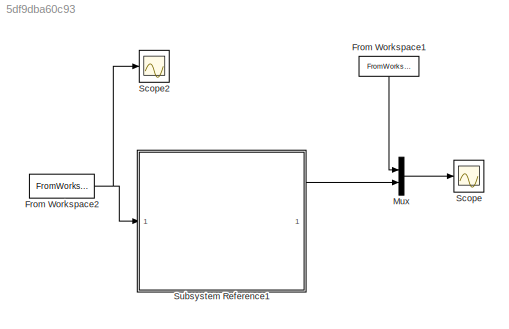
MODEL slx_5df9dba60c93
KIND model
CONFIG AbsTol = auto
CONFIG EnableMultiTasking = on
CONFIG FixedStep = 0.0001
CONFIG MaxStep = auto
CONFIG MinStep = 0.005
CONFIG RelTol = 1e-3
CONFIG SampleTimeConstraint = Unconstrained
CONFIG SolverName = FixedStepAuto
CONFIG StartTime = 0.0
CONFIG StopTime = 32
BLOCK [FromWorkspace] From Workspace1
  NameLocation = left
  VariableName = speed
BLOCK [FromWorkspace] From Workspace2
  VariableName = voltage
BLOCK [Mux] Mux
  DisplayOption = bar
  Inputs = 2
BLOCK [Scope] Scope
  Floating = off
  NumInputPorts = 1
  ScopeSpecificationString = Simulink.scopes.TimeScopeBlockCfg('CurrentConfiguration', extmgr.ConfigurationSet(extmgr.Configuration('Core','General UI',true),extmgr.Configuration('Core','Source UI',true),extmgr.Configuration('Sources','WiredSimulink',true),extmgr.Configuration('Visuals','Time Domain',true,'TimeAxisLabels','All','PlotType','Stairs','SerializedDisplays',{struct('MinYLimReal','7.03229','MaxYLimReal','8.979','YLa...<+1739ch>
BLOCK [Scope] Scope2
  Floating = off
  NumInputPorts = 1
  ScopeSpecificationString = Simulink.scopes.TimeScopeBlockCfg('CurrentConfiguration', extmgr.ConfigurationSet(extmgr.Configuration('Core','General UI',true),extmgr.Configuration('Core','Source UI',true),extmgr.Configuration('Sources','WiredSimulink',true,'DataLoggingVariableName','ScopeData2'),extmgr.Configuration('Visuals','Time Domain',true,'SerializedDisplays',{struct('MinYLimReal','-1.4984','MaxYLimReal','13.4856','YLabe...<+1422ch>
BLOCK [SubSystem] Subsystem Reference1
  ReferencedSubsystem = pololu_37D_pos_second_order
LINE From Workspace1:1 -> Mux:1
NET From Workspace2:1 -> Scope2:1, Subsystem Reference1:1
LINE Mux:1 -> Scope:1
LINE Subsystem Reference1:1 -> Mux:2
note: NET lines group one-source signal fan-out (src -> all destinations, sorted); 1:1 wires keep LINE
